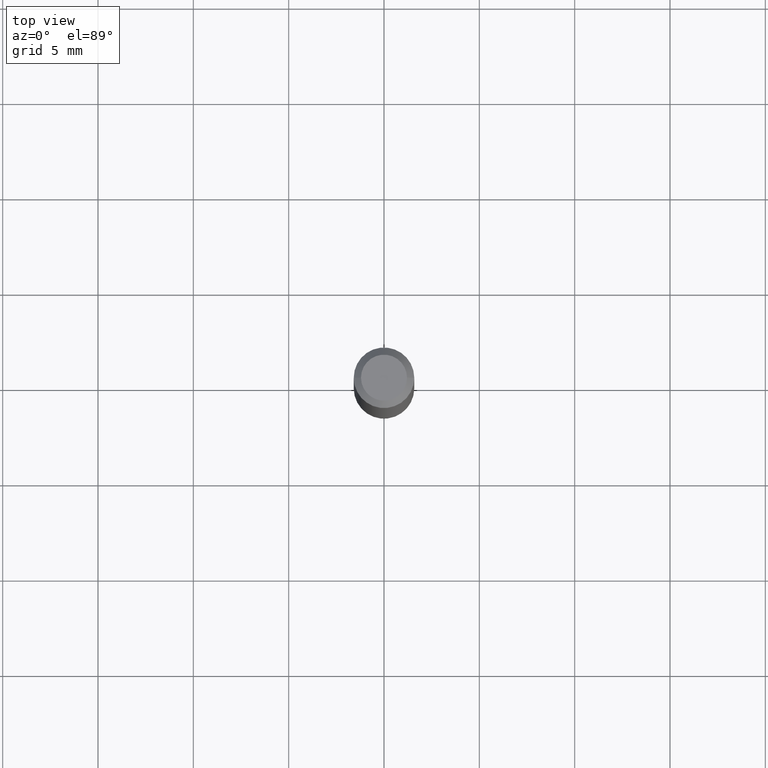
[diagram: clean part render]
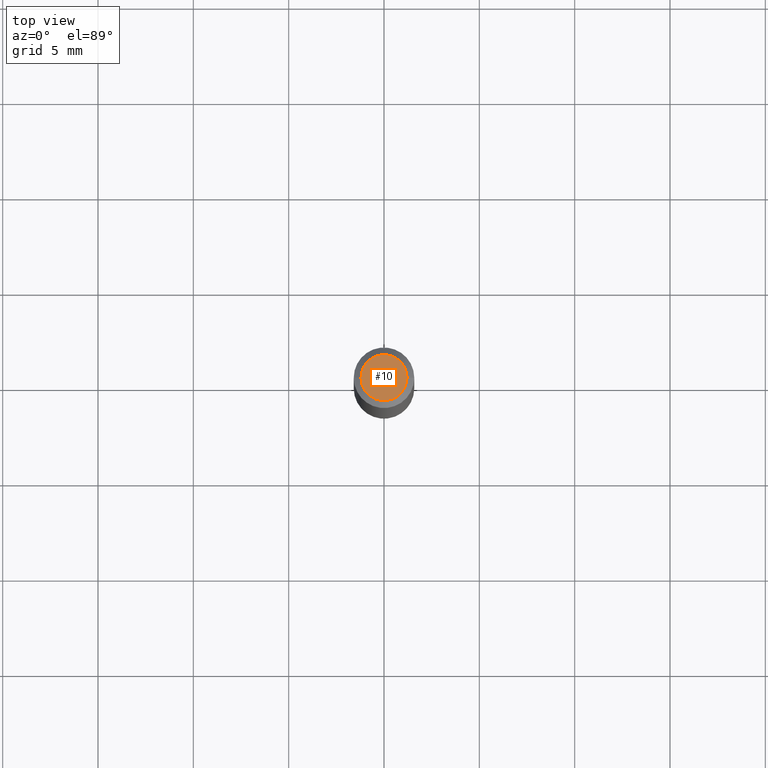
[diagram: same view with one face highlighted and labeled with its STEP entity id]
A machine part, top view. The second image highlights one B-rep face of the part: STEP entity #10.
In plain terms, the highlighted planar face has unit normal (0, -0, -1).
Its self-contained STEP definition (entity closure, byte-faithful):
#10 = ADVANCED_FACE ( 'NONE', ( #181 ), #332, .F. ) ;
#35 = CIRCLE ( 'NONE', #370, 0.04749999999999999362 ) ;
#38 = VERTEX_POINT ( 'NONE', #222 ) ;
#40 = DIRECTION ( 'NONE',  ( 2.438088387897960049E-29, -3.491481338843145188E-15, -1.000000000000000000 ) ) ;
#79 = DIRECTION ( 'NONE',  ( -1.000000000000000000, 6.982962677686265922E-15, -4.876176775795935793E-29 ) ) ;
#82 = CARTESIAN_POINT ( 'NONE',  ( 1.799783034236790585E-44, -2.569613180961801607E-30, -7.359664656873714366E-16 ) ) ;
#85 = EDGE_CURVE ( 'NONE', #38, #250, #108, .T. ) ;
#97 = CARTESIAN_POINT ( 'NONE',  ( 0.04749999999999999362, -4.035134999187590949E-16, -7.359664656873688728E-16 ) ) ;
#107 = EDGE_LOOP ( 'NONE', ( #203, #393 ) ) ;
#108 = CIRCLE ( 'NONE', #192, 0.04749999999999999362 ) ;
#115 = DIRECTION ( 'NONE',  ( 1.000000000000000000, -6.982962677686267499E-15, 4.852736867747366768E-29 ) ) ;
#117 = DIRECTION ( 'NONE',  ( -2.445468806185136597E-29, 3.491481338843145583E-15, 1.000000000000000000 ) ) ;
#181 = FACE_OUTER_BOUND ( 'NONE', #107, .T. ) ;
#192 = AXIS2_PLACEMENT_3D ( 'NONE', #82, #117, #115 ) ;
#199 = EDGE_CURVE ( 'NONE', #250, #38, #35, .T. ) ;
#203 = ORIENTED_EDGE ( 'NONE', *, *, #85, .T. ) ;
#222 = CARTESIAN_POINT ( 'NONE',  ( -0.04749999999999999362, 3.578768372314198180E-16, -7.359664656873739018E-16 ) ) ;
#250 = VERTEX_POINT ( 'NONE', #97 ) ;
#292 = AXIS2_PLACEMENT_3D ( 'NONE', #404, #40, #79 ) ;
#311 = DIRECTION ( 'NONE',  ( -2.445468806185136597E-29, 3.491481338843145583E-15, 1.000000000000000000 ) ) ;
#332 = PLANE ( 'NONE',  #292 ) ;
#370 = AXIS2_PLACEMENT_3D ( 'NONE', #455, #311, #452 ) ;
#393 = ORIENTED_EDGE ( 'NONE', *, *, #199, .T. ) ;
#404 = CARTESIAN_POINT ( 'NONE',  ( 3.316907271900976096E-16, 0.04749999999999999362, -5.338285964387351640E-16 ) ) ;
#452 = DIRECTION ( 'NONE',  ( 1.000000000000000000, -6.982962677686267499E-15, 4.852736867747366768E-29 ) ) ;
#455 = CARTESIAN_POINT ( 'NONE',  ( 1.799783034236790585E-44, -2.569613180961801607E-30, -7.359664656873714366E-16 ) ) ;